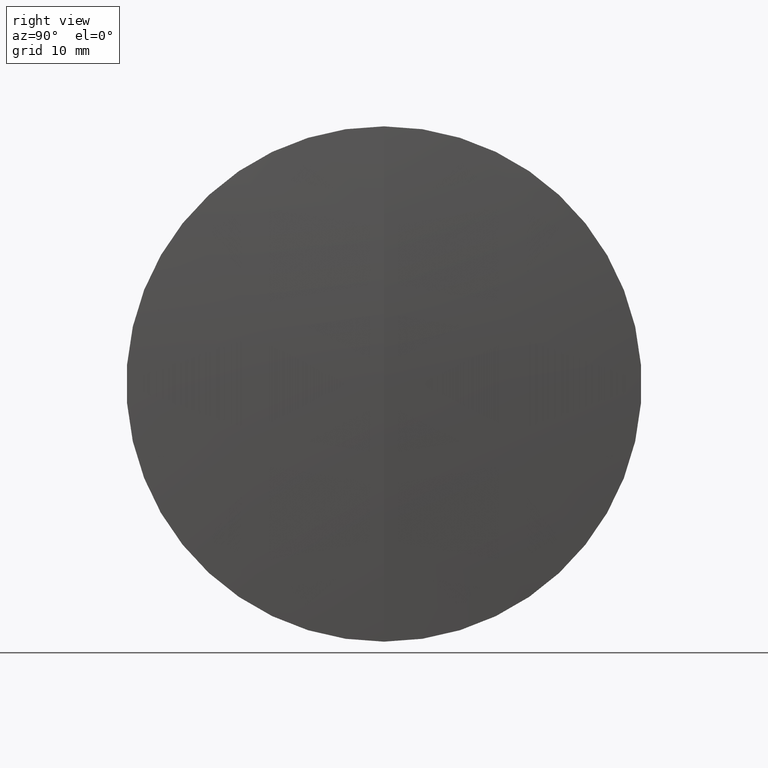
[diagram: clean part render]
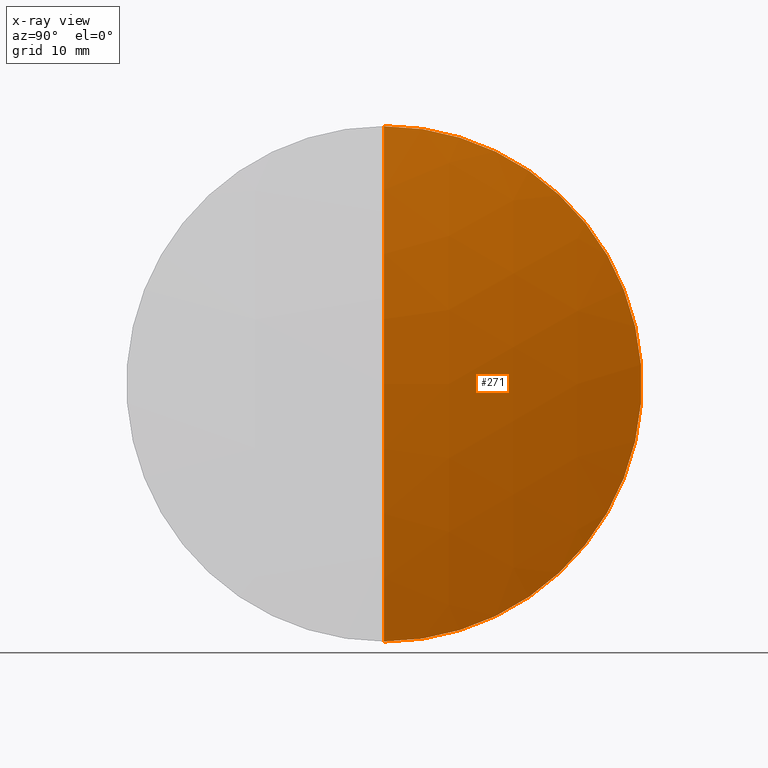
[diagram: x-ray — body ghosted, one internal face saturated and labeled with its STEP entity id]
A machine part, right view, then the same camera in x-ray: the body is ghosted and one INTERNAL B-rep face — a face not visible from any outside direction — is saturated and labeled: STEP entity #271.
In plain terms, the highlighted spherical surface has radius 123 mm.
Its self-contained STEP definition (entity closure, byte-faithful):
#3 = EDGE_CURVE ( 'NONE', #259, #210, #242, .T. ) ;
#20 = DIRECTION ( 'NONE',  ( 0.0000000000000000000, 0.0000000000000000000, -1.000000000000000000 ) ) ;
#25 = EDGE_LOOP ( 'NONE', ( #205, #181, #287 ) ) ;
#43 = CIRCLE ( 'NONE', #64, 123.0000000000003000 ) ;
#52 = VERTEX_POINT ( 'NONE', #142 ) ;
#64 = AXIS2_PLACEMENT_3D ( 'NONE', #165, #334, #20 ) ;
#65 = CARTESIAN_POINT ( 'NONE',  ( 335.4079976636520000, 3.673940397442059200E-015, -29.99999999999999600 ) ) ;
#70 = DIRECTION ( 'NONE',  ( 0.0000000000000000000, 0.0000000000000000000, 1.000000000000000000 ) ) ;
#83 = DIRECTION ( 'NONE',  ( -1.000000000000000000, -0.0000000000000000000, -0.0000000000000000000 ) ) ;
#95 = SPHERICAL_SURFACE ( 'NONE', #229, 123.0000000000003000 ) ;
#142 = CARTESIAN_POINT ( 'NONE',  ( 335.4079976636520000, 0.0000000000000000000, 29.99999999999999600 ) ) ;
#146 = AXIS2_PLACEMENT_3D ( 'NONE', #226, #83, #70 ) ;
#157 = CARTESIAN_POINT ( 'NONE',  ( 216.1226255512254100, 0.0000000000000000000, 0.0000000000000000000 ) ) ;
#164 = EDGE_CURVE ( 'NONE', #52, #210, #168, .T. ) ;
#165 = CARTESIAN_POINT ( 'NONE',  ( 216.1226255512254100, 0.0000000000000000000, 0.0000000000000000000 ) ) ;
#168 = CIRCLE ( 'NONE', #146, 29.99999999999999600 ) ;
#181 = ORIENTED_EDGE ( 'NONE', *, *, #3, .T. ) ;
#203 = EDGE_CURVE ( 'NONE', #259, #52, #43, .T. ) ;
#205 = ORIENTED_EDGE ( 'NONE', *, *, #203, .F. ) ;
#210 = VERTEX_POINT ( 'NONE', #65 ) ;
#211 = DIRECTION ( 'NONE',  ( -0.0000000000000000000, 1.000000000000000000, 1.224646799147353200E-016 ) ) ;
#213 = DIRECTION ( 'NONE',  ( 0.0000000000000000000, -1.224646799147353500E-016, 1.000000000000000000 ) ) ;
#218 = FACE_OUTER_BOUND ( 'NONE', #25, .T. ) ;
#221 = CARTESIAN_POINT ( 'NONE',  ( 339.1226255512257200, 0.0000000000000000000, 7.531577814756241600E-015 ) ) ;
#226 = CARTESIAN_POINT ( 'NONE',  ( 335.4079976636520000, 0.0000000000000000000, 0.0000000000000000000 ) ) ;
#229 = AXIS2_PLACEMENT_3D ( 'NONE', #157, #322, #286 ) ;
#242 = CIRCLE ( 'NONE', #301, 123.0000000000003000 ) ;
#259 = VERTEX_POINT ( 'NONE', #221 ) ;
#271 = ADVANCED_FACE ( 'NONE', ( #218 ), #95, .T. ) ;
#280 = CARTESIAN_POINT ( 'NONE',  ( 216.1226255512254100, 0.0000000000000000000, 0.0000000000000000000 ) ) ;
#286 = DIRECTION ( 'NONE',  ( 0.0000000000000000000, 0.0000000000000000000, 1.000000000000000000 ) ) ;
#287 = ORIENTED_EDGE ( 'NONE', *, *, #164, .F. ) ;
#301 = AXIS2_PLACEMENT_3D ( 'NONE', #280, #211, #213 ) ;
#322 = DIRECTION ( 'NONE',  ( 0.0000000000000000000, 1.000000000000000000, 0.0000000000000000000 ) ) ;
#334 = DIRECTION ( 'NONE',  ( 0.0000000000000000000, -1.000000000000000000, 0.0000000000000000000 ) ) ;